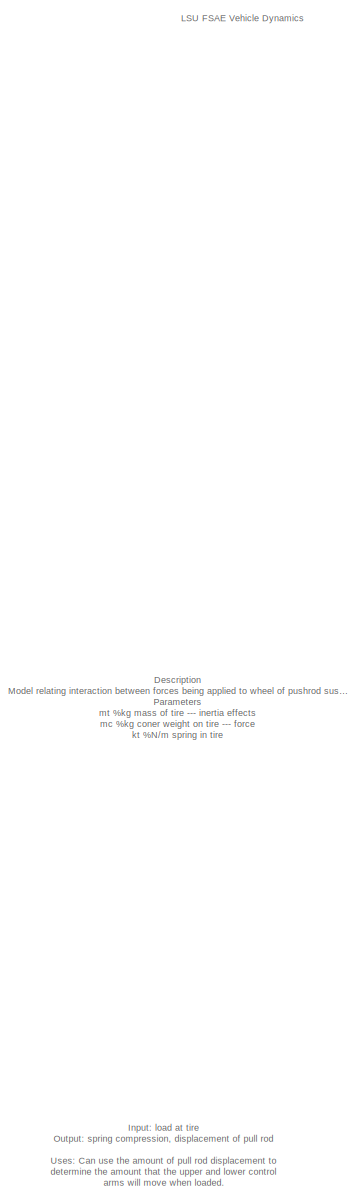
[diagram: root canvas - part 1/3, left side, full height]
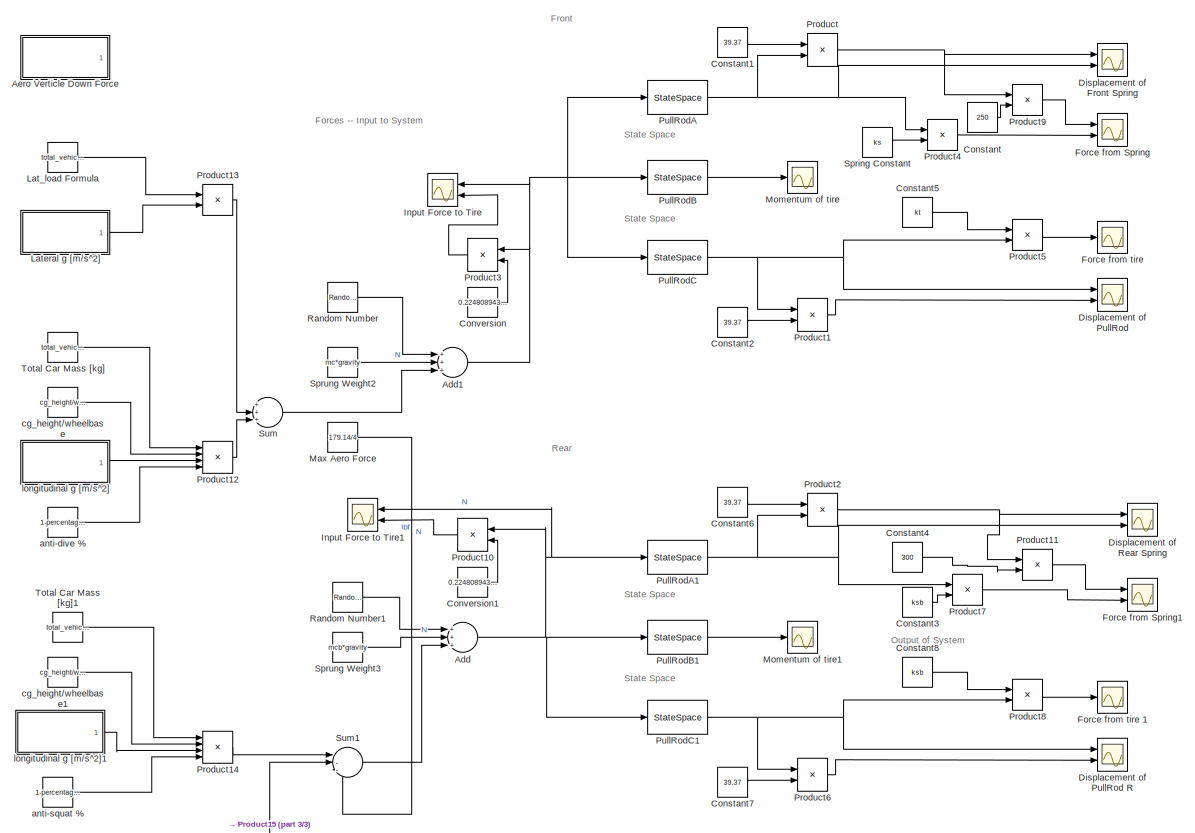
[diagram: root canvas - part 2/3, central region]
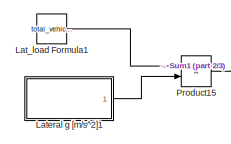
[diagram: root canvas - part 3/3, bottom center region]
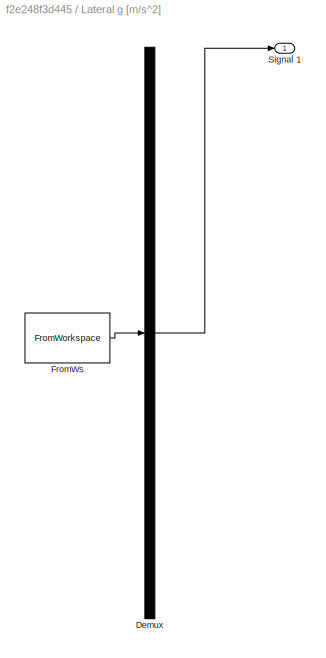
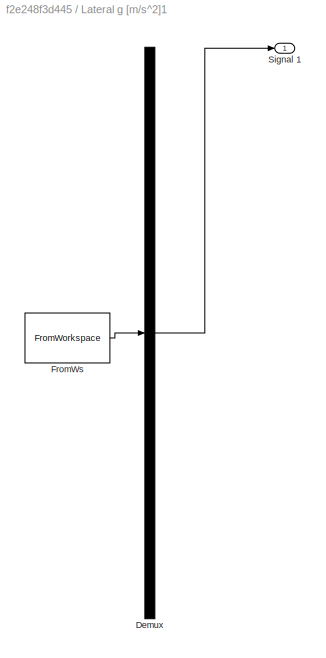
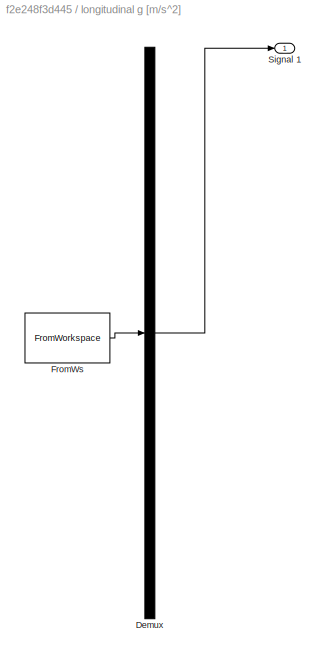
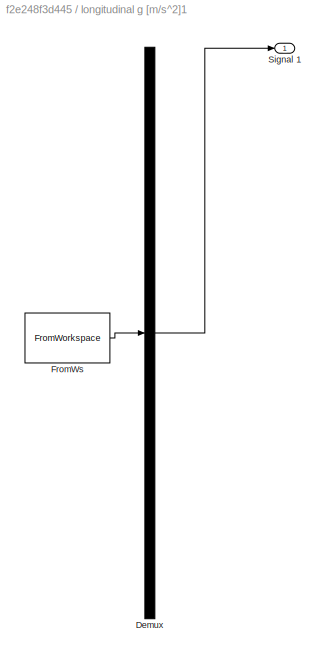
MODEL slx_f2e248f3d445
KIND model
CONFIG AbsTol = auto
CONFIG EnableMultiTasking = off
CONFIG FixedStep = auto
CONFIG MaxStep = auto
CONFIG MinStep = auto
CONFIG RelTol = 1e-3
CONFIG SampleTimeConstraint = Unconstrained
CONFIG Solver = VariableStepAuto
CONFIG SolverName = VariableStepAuto
CONFIG StartTime = 0.0
CONFIG StopTime = 60
BLOCK [Sum] Add
  InputSameDT = off
  Inputs = +++
  OutDataTypeStr = Inherit: Inherit via internal rule
  Ports = [3, 1]
  SaturateOnIntegerOverflow = off
BLOCK [Sum] Add1
  InputSameDT = off
  Inputs = +++
  OutDataTypeStr = Inherit: Inherit via internal rule
  Ports = [3, 1]
  SaturateOnIntegerOverflow = off
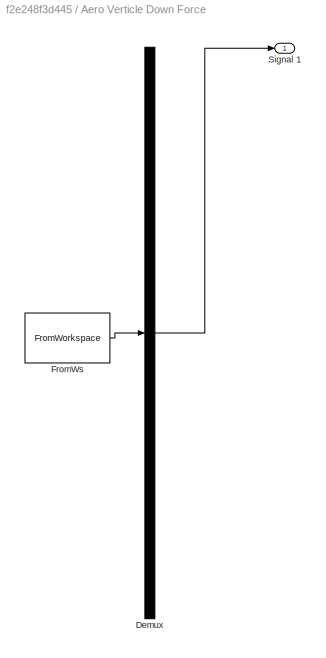
BLOCK [SubSystem] Aero Verticle Down Force
  ClipboardFcn = sigbuilder_block('clipboard');
  CloseFcn = sigbuilder_block('close');
  Commented = on
  ContinueFcn = sigbuilder_block('continue');
  CopyFcn = sigbuilder_block('copy');
  DeleteFcn = sigbuilder_block('delete');
  LoadFcn = sigbuilder_block('load');
  MaskHideContents = on
  ModelCloseFcn = sigbuilder_block('modelClose');
  NameChangeFcn = sigbuilder_block('namechange');
  OpenFcn = sigbuilder_block('open',[437.6 199.2 550.4 400 ]);
  PauseFcn = sigbuilder_block('pause');
  Ports = [0, 1]
  PreSaveFcn = sigbuilder_block('preSave');
  RequestExecContextInheritance = off
  StartFcn = sigbuilder_block('start');
  StopFcn = sigbuilder_block('stop');
  Tag = STV Subsys
BLOCK [Demux] Aero Verticle Down Force/Demux
  Outputs = 1
  Ports = [1, 1]
  Tag = STV Demux
BLOCK [FromWorkspace] Aero Verticle Down Force/FromWs
  SampleTime = 0
  Tag = STV FromWs
  VariableName = tuvar
  ZeroCross = on
BLOCK [Outport] Aero Verticle Down Force/Signal 1
  IconDisplay = Port number
  Tag = STV Outport
BLOCK [Constant] Constant
  Value = 250
BLOCK [Constant] Constant1
  Value = 39.37
BLOCK [Constant] Constant2
  Value = 39.37
BLOCK [Constant] Constant3
  Value = ksb
BLOCK [Constant] Constant4
  Value = 300
BLOCK [Constant] Constant5
  Value = kt
BLOCK [Constant] Constant6
  Value = 39.37
BLOCK [Constant] Constant7
  Value = 39.37
BLOCK [Constant] Constant8
  Value = ksb
BLOCK [Constant] Conversion
  Value = 0.22480894387
BLOCK [Constant] Conversion1
  Value = 0.22480894387
BLOCK [Scope] Displacement of Front Spring 
  Floating = off
  NumInputPorts = 2
  Ports = [2]
  ScopeSpecificationString = Simulink.scopes.TimeScopeBlockCfg('CurrentConfiguration', extmgr.ConfigurationSet(extmgr.Configuration('Core','General UI',true,'FigureColor',[0 0 0]),extmgr.Configuration('Core','Source UI',true),extmgr.Configuration('Sources','WiredSimulink',true),extmgr.Configuration('Visuals','Time Domain',true,'SerializedDisplays',{struct('MinYLimReal','-0.02701','MaxYLimReal','0.2431','YLabelReal','Spring Di...<+1817ch>
BLOCK [Scope] Displacement of PullRod
  Floating = off
  NumInputPorts = 2
  Ports = [2]
  ScopeSpecificationString = Simulink.scopes.TimeScopeBlockCfg('CurrentConfiguration', extmgr.ConfigurationSet(extmgr.Configuration('Core','General UI',true,'FigureColor',[0 0 0]),extmgr.Configuration('Core','Source UI',true),extmgr.Configuration('Sources','WiredSimulink',true,'DataLoggingVariableName','ScopeData2'),extmgr.Configuration('Visuals','Time Domain',true,'SerializedDisplays',{struct('MinYLimReal','-0.0003','MaxYLim...<+1951ch>
BLOCK [Scope] Displacement of PullRod R
  Floating = off
  NumInputPorts = 2
  Ports = [2]
  ScopeSpecificationString = Simulink.scopes.TimeScopeBlockCfg('CurrentConfiguration', extmgr.ConfigurationSet(extmgr.Configuration('Core','General UI',true,'FigureColor',[0 0 0]),extmgr.Configuration('Core','Source UI',true),extmgr.Configuration('Sources','WiredSimulink',true,'DataLoggingVariableName','ScopeData2'),extmgr.Configuration('Visuals','Time Domain',true,'SerializedDisplays',{struct('MinYLimReal','-0.00105','MaxYLi...<+1952ch>
BLOCK [Scope] Displacement of Rear Spring
  Floating = off
  NumInputPorts = 2
  Ports = [2]
  ScopeSpecificationString = Simulink.scopes.TimeScopeBlockCfg('CurrentConfiguration', extmgr.ConfigurationSet(extmgr.Configuration('Core','General UI',true,'FigureColor',[0 0 0]),extmgr.Configuration('Core','Source UI',true),extmgr.Configuration('Sources','WiredSimulink',true,'DataLoggingVariableName','ScopeData3'),extmgr.Configuration('Visuals','Time Domain',true,'SerializedDisplays',{struct('MinYLimReal','-0.05083','MaxYLi...<+1948ch>
BLOCK [Scope] Force from Spring
  Floating = off
  NumInputPorts = 2
  Ports = [2]
  ScopeSpecificationString = Simulink.scopes.TimeScopeBlockCfg('CurrentConfiguration', extmgr.ConfigurationSet(extmgr.Configuration('Core','General UI',true,'FigureColor',[0 0 0]),extmgr.Configuration('Core','Source UI',true),extmgr.Configuration('Sources','WiredSimulink',true,'DataLoggingVariableName','ScopeData1'),extmgr.Configuration('Visuals','Time Domain',true,'SerializedDisplays',{struct('MinYLimReal','-18.1123','MaxYLi...<+1827ch>
BLOCK [Scope] Force from Spring1
  Floating = off
  NumInputPorts = 2
  Ports = [2]
  ScopeSpecificationString = Simulink.scopes.TimeScopeBlockCfg('CurrentConfiguration', extmgr.ConfigurationSet(extmgr.Configuration('Core','General UI',true),extmgr.Configuration('Core','Source UI',true),extmgr.Configuration('Sources','WiredSimulink',true,'DataLoggingVariableName','ScopeData5'),extmgr.Configuration('Visuals','Time Domain',true,'SerializedDisplays',{struct('MinYLimReal','-33.39048','MaxYLimReal','186.46647','Y...<+2060ch>
BLOCK [Scope] Force from tire 
  Floating = off
  NumInputPorts = 1
  Ports = [1]
  ScopeSpecificationString = Simulink.scopes.TimeScopeBlockCfg('CurrentConfiguration', extmgr.ConfigurationSet(extmgr.Configuration('Core','General UI',true),extmgr.Configuration('Core','Source UI',true),extmgr.Configuration('Sources','WiredSimulink',true,'DataLoggingVariableName','ScopeData2'),extmgr.Configuration('Visuals','Time Domain',true,'SerializedDisplays',{struct('MinYLimReal','-0.48981','MaxYLimReal','4.4083','YLabe...<+1392ch>
BLOCK [Scope] Force from tire 1
  Floating = off
  NumInputPorts = 1
  Ports = [1]
  ScopeSpecificationString = Simulink.scopes.TimeScopeBlockCfg('CurrentConfiguration', extmgr.ConfigurationSet(extmgr.Configuration('Core','General UI',true),extmgr.Configuration('Core','Source UI',true),extmgr.Configuration('Sources','WiredSimulink',true,'DataLoggingVariableName','ScopeData6'),extmgr.Configuration('Visuals','Time Domain',true,'SerializedDisplays',{struct('MinYLimReal','-13.20776','MaxYLimReal','118.86984','Y...<+1377ch>
BLOCK [Scope] Input Force to Tire
  Floating = off
  NumInputPorts = 2
  Ports = [2]
  ScopeSpecificationString = Simulink.scopes.TimeScopeBlockCfg('CurrentConfiguration', extmgr.ConfigurationSet(extmgr.Configuration('Core','General UI',true,'FigureColor',[0 0 0]),extmgr.Configuration('Core','Source UI',true),extmgr.Configuration('Sources','WiredSimulink',true,'DataLoggingVariableName','ScopeData4'),extmgr.Configuration('Visuals','Time Domain',true,'SerializedDisplays',{struct('MinYLimReal','580.47821','MaxYL...<+1993ch>
BLOCK [Scope] Input Force to Tire1
  Floating = off
  NumInputPorts = 2
  Ports = [2]
  ScopeSpecificationString = Simulink.scopes.TimeScopeBlockCfg('CurrentConfiguration', extmgr.ConfigurationSet(extmgr.Configuration('Core','General UI',true,'FigureColor',[0 0 0]),extmgr.Configuration('Core','Source UI',true),extmgr.Configuration('Sources','WiredSimulink',true,'DataLoggingVariableName','ScopeData1'),extmgr.Configuration('Visuals','Time Domain',true,'SerializedDisplays',{struct('MinYLimReal','714.23991','MaxYL...<+1986ch>
BLOCK [Constant] Lat_load Formula
  Commented = on
  Value = total_vehicle_mass/track_front*((H*Kf/(Kf+Kr)) + b_base/wheelbase*rch_front)
BLOCK [Constant] Lat_load Formula1
  Commented = on
  Value = total_vehicle_mass/track_rear*((H*Kr/(Kr+Kf)) + b_base/wheelbase*rch_rear)
BLOCK [SubSystem] Lateral g [m//s^2]
  ClipboardFcn = sigbuilder_block('clipboard');
  CloseFcn = sigbuilder_block('close');
  Commented = on
  ContinueFcn = sigbuilder_block('continue');
  CopyFcn = sigbuilder_block('copy');
  DeleteFcn = sigbuilder_block('delete');
  LoadFcn = sigbuilder_block('load');
  MaskHideContents = on
  ModelCloseFcn = sigbuilder_block('modelClose');
  NameChangeFcn = sigbuilder_block('namechange');
  OpenFcn = sigbuilder_block('open',[437.6 199.2 550.4 400 ]);
  PauseFcn = sigbuilder_block('pause');
  Ports = [0, 1]
  PreSaveFcn = sigbuilder_block('preSave');
  RequestExecContextInheritance = off
  StartFcn = sigbuilder_block('start');
  StopFcn = sigbuilder_block('stop');
  Tag = STV Subsys
BLOCK [Demux] Lateral g [m//s^2]/Demux
  Outputs = 1
  Ports = [1, 1]
  Tag = STV Demux
BLOCK [FromWorkspace] Lateral g [m//s^2]/FromWs
  SampleTime = 0
  Tag = STV FromWs
  VariableName = tuvar
  ZeroCross = on
BLOCK [Outport] Lateral g [m//s^2]/Signal 1
  IconDisplay = Port number
  Tag = STV Outport
BLOCK [SubSystem] Lateral g [m//s^2]1
  ClipboardFcn = sigbuilder_block('clipboard');
  CloseFcn = sigbuilder_block('close');
  Commented = on
  ContinueFcn = sigbuilder_block('continue');
  CopyFcn = sigbuilder_block('copy');
  DeleteFcn = sigbuilder_block('delete');
  LoadFcn = sigbuilder_block('load');
  MaskHideContents = on
  ModelCloseFcn = sigbuilder_block('modelClose');
  NameChangeFcn = sigbuilder_block('namechange');
  OpenFcn = sigbuilder_block('open',[437.6 199.2 550.4 400 ]);
  PauseFcn = sigbuilder_block('pause');
  Ports = [0, 1]
  PreSaveFcn = sigbuilder_block('preSave');
  RequestExecContextInheritance = off
  StartFcn = sigbuilder_block('start');
  StopFcn = sigbuilder_block('stop');
  Tag = STV Subsys
BLOCK [Demux] Lateral g [m//s^2]1/Demux
  Outputs = 1
  Ports = [1, 1]
  Tag = STV Demux
BLOCK [FromWorkspace] Lateral g [m//s^2]1/FromWs
  SampleTime = 0
  Tag = STV FromWs
  VariableName = tuvar
  ZeroCross = on
BLOCK [Outport] Lateral g [m//s^2]1/Signal 1
  IconDisplay = Port number
  Tag = STV Outport
BLOCK [Constant] Max Aero Force
  Value = 179.14/4
BLOCK [Scope] Momentum of tire
  Floating = off
  NumInputPorts = 1
  Ports = [1]
  ScopeSpecificationString = Simulink.scopes.TimeScopeBlockCfg('CurrentConfiguration', extmgr.ConfigurationSet(extmgr.Configuration('Core','General UI',true,'FigureColor',[0 0 0]),extmgr.Configuration('Core','Source UI',true),extmgr.Configuration('Sources','WiredSimulink',true,'DataLoggingVariableName','ScopeData1'),extmgr.Configuration('Visuals','Time Domain',true,'SerializedDisplays',{struct('MinYLimReal','-0.0956','MaxYLim...<+1355ch>
BLOCK [Scope] Momentum of tire1
  Floating = off
  NumInputPorts = 1
  Ports = [1]
  ScopeSpecificationString = Simulink.scopes.TimeScopeBlockCfg('CurrentConfiguration', extmgr.ConfigurationSet(extmgr.Configuration('Core','General UI',true,'FigureColor',[0 0 0]),extmgr.Configuration('Core','Source UI',true),extmgr.Configuration('Sources','WiredSimulink',true,'DataLoggingVariableName','ScopeData7'),extmgr.Configuration('Visuals','Time Domain',true,'SerializedDisplays',{struct('MinYLimReal','-132.54512','MaxY...<+1372ch>
BLOCK [Product] Product
  InputSameDT = off
  OutDataTypeStr = Inherit: Inherit via internal rule
  Ports = [2, 1]
  RndMeth = Floor
  SaturateOnIntegerOverflow = off
BLOCK [Product] Product1
  InputSameDT = off
  OutDataTypeStr = Inherit: Inherit via internal rule
  Ports = [2, 1]
  RndMeth = Floor
  SaturateOnIntegerOverflow = off
BLOCK [Product] Product10
  InputSameDT = off
  OutDataTypeStr = Inherit: Inherit via internal rule
  Ports = [2, 1]
  RndMeth = Floor
  SaturateOnIntegerOverflow = off
BLOCK [Product] Product11
  InputSameDT = off
  OutDataTypeStr = Inherit: Inherit via internal rule
  Ports = [2, 1]
  RndMeth = Floor
  SaturateOnIntegerOverflow = off
BLOCK [Product] Product12
  Commented = on
  InputSameDT = off
  Inputs = 4
  OutDataTypeStr = Inherit: Inherit via internal rule
  Ports = [4, 1]
  RndMeth = Floor
  SaturateOnIntegerOverflow = off
BLOCK [Product] Product13
  InputSameDT = off
  OutDataTypeStr = Inherit: Inherit via internal rule
  Ports = [2, 1]
  RndMeth = Floor
  SaturateOnIntegerOverflow = off
BLOCK [Product] Product14
  Commented = on
  InputSameDT = off
  Inputs = 4
  OutDataTypeStr = Inherit: Inherit via internal rule
  Ports = [4, 1]
  RndMeth = Floor
  SaturateOnIntegerOverflow = off
BLOCK [Product] Product15
  InputSameDT = off
  OutDataTypeStr = Inherit: Inherit via internal rule
  Ports = [2, 1]
  RndMeth = Floor
  SaturateOnIntegerOverflow = off
BLOCK [Product] Product2
  InputSameDT = off
  OutDataTypeStr = Inherit: Inherit via internal rule
  Ports = [2, 1]
  RndMeth = Floor
  SaturateOnIntegerOverflow = off
BLOCK [Product] Product3
  InputSameDT = off
  OutDataTypeStr = Inherit: Inherit via internal rule
  Ports = [2, 1]
  RndMeth = Floor
  SaturateOnIntegerOverflow = off
BLOCK [Product] Product4
  InputSameDT = off
  OutDataTypeStr = Inherit: Inherit via internal rule
  Ports = [2, 1]
  RndMeth = Floor
  SaturateOnIntegerOverflow = off
BLOCK [Product] Product5
  InputSameDT = off
  OutDataTypeStr = Inherit: Inherit via internal rule
  Ports = [2, 1]
  RndMeth = Floor
  SaturateOnIntegerOverflow = off
BLOCK [Product] Product6
  InputSameDT = off
  OutDataTypeStr = Inherit: Inherit via internal rule
  Ports = [2, 1]
  RndMeth = Floor
  SaturateOnIntegerOverflow = off
BLOCK [Product] Product7
  InputSameDT = off
  OutDataTypeStr = Inherit: Inherit via internal rule
  Ports = [2, 1]
  RndMeth = Floor
  SaturateOnIntegerOverflow = off
BLOCK [Product] Product8
  InputSameDT = off
  OutDataTypeStr = Inherit: Inherit via internal rule
  Ports = [2, 1]
  RndMeth = Floor
  SaturateOnIntegerOverflow = off
BLOCK [Product] Product9
  InputSameDT = off
  OutDataTypeStr = Inherit: Inherit via internal rule
  Ports = [2, 1]
  RndMeth = Floor
  SaturateOnIntegerOverflow = off
BLOCK [StateSpace] PullRodA
  A = [0 l3/(l4*mt) 0; -l3/l4*ks -(l3/l4)^2*b/mt -kt; 0 1/mt 0]
  B = [0; 1; 0]
  C = [1 0 0]
  D = 0
  InitialCondition = 0
  Ports = [1, 1]
BLOCK [StateSpace] PullRodA1
  A = [0 l3b/(l4b*mtb) 0; -l3b/l4b*ksb -(l3b/l4b)^2*bb/mtb -ktb; 0 1/mtb 0]
  B = [0; 1; 0]
  C = [1 0 0]
  D = 0
  InitialCondition = 0
  Ports = [1, 1]
BLOCK [StateSpace] PullRodB
  A = [0 l3/(l4*mt) 0; -l3/l4*ks -(l3/l4)^2*b/mt -kt; 0 1/mt 0]
  B = [0; 1; 0]
  C = [0 1 0]
  D = 0
  InitialCondition = 0
  Ports = [1, 1]
BLOCK [StateSpace] PullRodB1
  A = [0 l3b/(l4b*mtb) 0; -l3b/l4b*ksb -(l3b/l4b)^2*bb/mtb -ktb; 0 1/mtb 0]
  B = [0; 1; 0]
  C = [0 1 0]
  D = 0
  InitialCondition = 0
  Ports = [1, 1]
BLOCK [StateSpace] PullRodC
  A = [0 l3/(l4*mt) 0; -l3/l4*ks -(l3/l4)^2*b/mt -kt; 0 1/mt 0]
  B = [0; 1; 0]
  C = [0 0 1]
  D = 0
  InitialCondition = 0
  Ports = [1, 1]
BLOCK [StateSpace] PullRodC1
  A = [0 l3b/(l4b*mtb) 0; -l3b/l4b*ksb -(l3b/l4b)^2*bb/mtb -ktb; 0 1/mtb 0]
  B = [0; 1; 0]
  C = [0 0 1]
  D = 0
  InitialCondition = 0
  Ports = [1, 1]
BLOCK [RandomNumber] Random Number
  SampleTime = .7
  Variance = 200
BLOCK [RandomNumber] Random Number1
  SampleTime = .7
  Variance = 200
BLOCK [Constant] Spring Constant
  Value = ks
BLOCK [Constant] Sprung Weight2
  Value = mc*gravity
BLOCK [Constant] Sprung Weight3
  Value = mcb*gravity
BLOCK [Sum] Sum
  IconShape = round
  InputSameDT = off
  Inputs = +++|
  OutDataTypeStr = Inherit: Inherit via internal rule
  Ports = [3, 1]
  SaturateOnIntegerOverflow = off
BLOCK [Sum] Sum1
  IconShape = round
  InputSameDT = off
  Inputs = |--+
  OutDataTypeStr = Inherit: Inherit via internal rule
  Ports = [3, 1]
  SaturateOnIntegerOverflow = off
BLOCK [Constant] Total Car Mass [kg]
  Value = total_vehicle_mass
BLOCK [Constant] Total Car Mass [kg]1
  Commented = on
  Value = total_vehicle_mass
BLOCK [Constant] anti-dive %
  Commented = on
  Value = 1-percentage_antidive
BLOCK [Constant] anti-squat %
  Commented = on
  Value = 1-percentage_antidive
BLOCK [Constant] cg_height//wheelbase
  Commented = on
  Value = cg_height/wheelbase*.5
BLOCK [Constant] cg_height//wheelbase1
  Commented = on
  Value = cg_height/wheelbase
BLOCK [SubSystem] longitudinal g [m//s^2]
  ClipboardFcn = sigbuilder_block('clipboard');
  CloseFcn = sigbuilder_block('close');
  Commented = on
  ContinueFcn = sigbuilder_block('continue');
  CopyFcn = sigbuilder_block('copy');
  DeleteFcn = sigbuilder_block('delete');
  LoadFcn = sigbuilder_block('load');
  MaskHideContents = on
  ModelCloseFcn = sigbuilder_block('modelClose');
  NameChangeFcn = sigbuilder_block('namechange');
  OpenFcn = sigbuilder_block('open',[437.6 199.2 550.4 400 ]);
  PauseFcn = sigbuilder_block('pause');
  Ports = [0, 1]
  PreSaveFcn = sigbuilder_block('preSave');
  RequestExecContextInheritance = off
  StartFcn = sigbuilder_block('start');
  StopFcn = sigbuilder_block('stop');
  Tag = STV Subsys
BLOCK [Demux] longitudinal g [m//s^2]/Demux
  Outputs = 1
  Ports = [1, 1]
  Tag = STV Demux
BLOCK [FromWorkspace] longitudinal g [m//s^2]/FromWs
  SampleTime = 0
  Tag = STV FromWs
  VariableName = tuvar
  ZeroCross = on
BLOCK [Outport] longitudinal g [m//s^2]/Signal 1
  IconDisplay = Port number
  Tag = STV Outport
BLOCK [SubSystem] longitudinal g [m//s^2]1
  ClipboardFcn = sigbuilder_block('clipboard');
  CloseFcn = sigbuilder_block('close');
  Commented = on
  ContinueFcn = sigbuilder_block('continue');
  CopyFcn = sigbuilder_block('copy');
  DeleteFcn = sigbuilder_block('delete');
  LoadFcn = sigbuilder_block('load');
  MaskHideContents = on
  ModelCloseFcn = sigbuilder_block('modelClose');
  NameChangeFcn = sigbuilder_block('namechange');
  OpenFcn = sigbuilder_block('open',[437.6 199.2 550.4 400 ]);
  PauseFcn = sigbuilder_block('pause');
  Ports = [0, 1]
  PreSaveFcn = sigbuilder_block('preSave');
  RequestExecContextInheritance = off
  StartFcn = sigbuilder_block('start');
  StopFcn = sigbuilder_block('stop');
  Tag = STV Subsys
BLOCK [Demux] longitudinal g [m//s^2]1/Demux
  Outputs = 1
  Ports = [1, 1]
  Tag = STV Demux
BLOCK [FromWorkspace] longitudinal g [m//s^2]1/FromWs
  SampleTime = 0
  Tag = STV FromWs
  VariableName = tuvar
  ZeroCross = on
BLOCK [Outport] longitudinal g [m//s^2]1/Signal 1
  IconDisplay = Port number
  Tag = STV Outport
ANNOTATION (root): Description Model relating interaction between forces being applied to wheel of pushrod suspension and spring/damper system connected to pushrod. Model was checked by the use of real data from a test day. The test day data gave potentiometer readings from springs that descibed the displacement of the front right spring (connected to pushrod). This displacement data was then used to calculate the f...<+637ch>
ANNOTATION (root): Front
ANNOTATION (root): Rear
ANNOTATION (root): LSU FSAE Vehicle Dynamics
ANNOTATION (root): Forces -- Input to System
ANNOTATION (root): Input: load at tire Output: spring compression, displacement of pull rod Uses: Can use the amount of pull rod displacement to determine the amount that the upper and lower control arms will move when loaded. Need to define the amount of force that will go through the control arm and the amount that will Max lateral acceleration: 1.62g Max Longitudinal acceleration: 1.74g (in braking) 1.37g (in acc...<+71ch>
ANNOTATION (root): Output of System
ANNOTATION (root): State Space
NET Add1:1 -> Input Force to Tire:1, Product3:1, PullRodA:1, PullRodB:1, PullRodC:1
NET Add:1 -> Input Force to Tire1:1, Product10:1, PullRodA1:1, PullRodB1:1, PullRodC1:1
LINE Constant1:1 -> Product:1
LINE Constant2:1 -> Product1:2
LINE Constant3:1 -> Product7:2
LINE Constant4:1 -> Product11:2
LINE Constant5:1 -> Product5:1
LINE Constant6:1 -> Product2:1
LINE Constant7:1 -> Product6:2
LINE Constant8:1 -> Product8:1
LINE Constant:1 -> Product9:2
LINE Conversion1:1 -> Product10:2
LINE Conversion:1 -> Product3:2
LINE Lat_load Formula1:1 -> Product15:1
LINE Lat_load Formula:1 -> Product13:1
LINE Lateral g [m//s^2]1:1 -> Product15:2
LINE Lateral g [m//s^2]:1 -> Product13:2
LINE Max Aero Force:1 -> Sum1:3
LINE Product10:1 -> Input Force to Tire1:2
LINE Product11:1 -> Force from Spring1:1
LINE Product12:1 -> Sum:3
LINE Product13:1 -> Sum:2
LINE Product14:1 -> Sum1:1
LINE Product15:1 -> Sum1:2
LINE Product1:1 -> Displacement of PullRod:2
NET Product2:1 -> Displacement of Rear Spring:1, Product11:1
LINE Product3:1 -> Input Force to Tire:2
LINE Product4:1 -> Force from Spring:2
LINE Product5:1 -> Force from tire :1
LINE Product6:1 -> Displacement of PullRod R:2
LINE Product7:1 -> Force from Spring1:2
LINE Product8:1 -> Force from tire 1:1
LINE Product9:1 -> Force from Spring:1
NET Product:1 -> Displacement of Front Spring :1, Product9:1
NET PullRodA1:1 -> Displacement of Rear Spring:2, Product2:2, Product7:1
NET PullRodA:1 -> Displacement of Front Spring :2, Product4:1, Product:2
LINE PullRodB1:1 -> Momentum of tire1:1
LINE PullRodB:1 -> Momentum of tire:1
NET PullRodC1:1 -> Displacement of PullRod R:1, Product6:1, Product8:2
NET PullRodC:1 -> Displacement of PullRod:1, Product1:1, Product5:2
LINE Random Number1:1 -> Add:1
LINE Random Number:1 -> Add1:1
LINE Spring Constant:1 -> Product4:2
LINE Sprung Weight2:1 -> Add1:2
LINE Sprung Weight3:1 -> Add:2
LINE Sum1:1 -> Add:3
LINE Sum:1 -> Add1:3
LINE Total Car Mass [kg]1:1 -> Product14:1
LINE Total Car Mass [kg]:1 -> Product12:1
LINE anti-dive %:1 -> Product12:4
LINE anti-squat %:1 -> Product14:4
LINE cg_height//wheelbase1:1 -> Product14:2
LINE cg_height//wheelbase:1 -> Product12:2
LINE longitudinal g [m//s^2]1:1 -> Product14:3
LINE longitudinal g [m//s^2]:1 -> Product12:3
note: NET lines group one-source signal fan-out (src -> all destinations, sorted); 1:1 wires keep LINE
